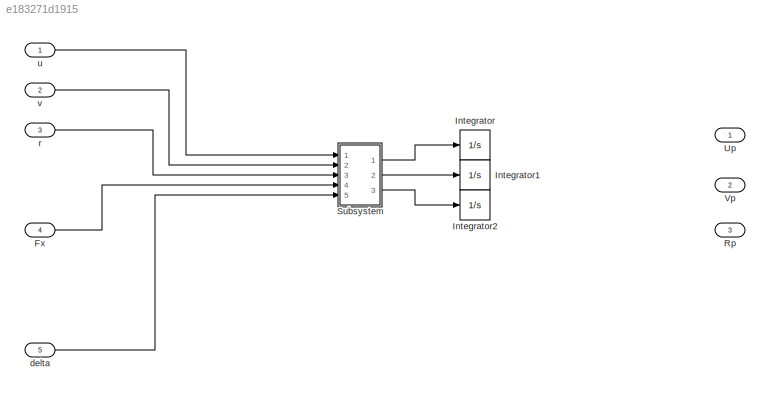
MODEL slx_e183271d1915
KIND model
CONFIG AbsTol = auto
CONFIG EnableMultiTasking = off
CONFIG FixedStep = auto
CONFIG MaxStep = auto
CONFIG MinStep = auto
CONFIG RelTol = 1e-3
CONFIG SampleTimeConstraint = Unconstrained
CONFIG Solver = VariableStepAuto
CONFIG SolverName = VariableStepAuto
CONFIG StartTime = 0.0
CONFIG StopTime = 10.0
BLOCK [Inport] Fx
  IconDisplay = Port number
  Port = 4
BLOCK [Integrator] Integrator
  Ports = [1, 1]
BLOCK [Integrator] Integrator1
  Ports = [1, 1]
BLOCK [Integrator] Integrator2
  Ports = [1, 1]
BLOCK [Outport] Rp 
  IconDisplay = Port number
  Port = 3
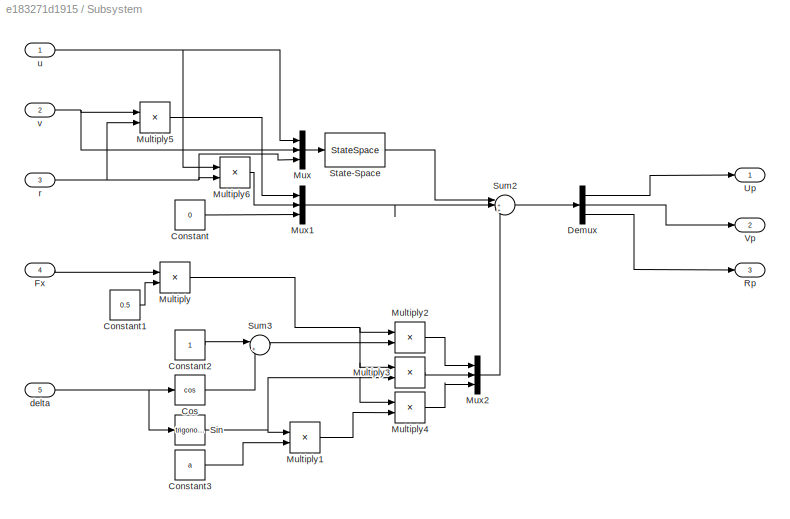
BLOCK [SubSystem] Subsystem
  Ports = [5, 3]
  RequestExecContextInheritance = off
BLOCK [Constant] Subsystem/Constant
  Value = 0
BLOCK [Constant] Subsystem/Constant1
  Value = 0.5
BLOCK [Constant] Subsystem/Constant2
BLOCK [Constant] Subsystem/Constant3
  Value = a
BLOCK [Trigonometry] Subsystem/Cos
  Operator = cos
  Ports = [1, 1]
BLOCK [Demux] Subsystem/Demux
  DisplayOption = bar
  Outputs = 3
  Ports = [1, 3]
BLOCK [Inport] Subsystem/Fx
  IconDisplay = Port number
  Port = 4
BLOCK [Product] Subsystem/Multiply
  InputSameDT = off
  OutDataTypeStr = Inherit: Inherit via internal rule
  Ports = [2, 1]
  RndMeth = Floor
  SaturateOnIntegerOverflow = off
BLOCK [Product] Subsystem/Multiply1
  InputSameDT = off
  OutDataTypeStr = Inherit: Inherit via internal rule
  Ports = [2, 1]
  RndMeth = Floor
  SaturateOnIntegerOverflow = off
BLOCK [Product] Subsystem/Multiply2
  InputSameDT = off
  OutDataTypeStr = Inherit: Inherit via internal rule
  Ports = [2, 1]
  RndMeth = Floor
  SaturateOnIntegerOverflow = off
BLOCK [Product] Subsystem/Multiply3
  InputSameDT = off
  OutDataTypeStr = Inherit: Inherit via internal rule
  Ports = [2, 1]
  RndMeth = Floor
  SaturateOnIntegerOverflow = off
BLOCK [Product] Subsystem/Multiply4
  InputSameDT = off
  OutDataTypeStr = Inherit: Inherit via internal rule
  Ports = [2, 1]
  RndMeth = Floor
  SaturateOnIntegerOverflow = off
BLOCK [Product] Subsystem/Multiply5
  InputSameDT = off
  OutDataTypeStr = Inherit: Inherit via internal rule
  Ports = [2, 1]
  RndMeth = Floor
  SaturateOnIntegerOverflow = off
BLOCK [Product] Subsystem/Multiply6
  InputSameDT = off
  OutDataTypeStr = Inherit: Inherit via internal rule
  Ports = [2, 1]
  RndMeth = Floor
  SaturateOnIntegerOverflow = off
BLOCK [Mux] Subsystem/Mux
  DisplayOption = bar
  Inputs = 3
  Ports = [3, 1]
BLOCK [Mux] Subsystem/Mux1
  DisplayOption = bar
  Inputs = 3
  Ports = [3, 1]
BLOCK [Mux] Subsystem/Mux2
  DisplayOption = bar
  Inputs = 3
  Ports = [3, 1]
BLOCK [Outport] Subsystem/Rp 
  IconDisplay = Port number
  Port = 3
BLOCK [Trigonometry] Subsystem/Sin
  Ports = [1, 1]
BLOCK [StateSpace] Subsystem/State-Space
  A = A
  B = B
  C = B
  D = B
  InitialCondition = 0
  Ports = [1, 1]
BLOCK [Sum] Subsystem/Sum2
  IconShape = round
  InputSameDT = off
  Inputs = |+++
  OutDataTypeStr = Inherit: Inherit via internal rule
  Ports = [3, 1]
  SaturateOnIntegerOverflow = off
BLOCK [Sum] Subsystem/Sum3
  IconShape = round
  InputSameDT = off
  Inputs = |++
  OutDataTypeStr = Inherit: Inherit via internal rule
  Ports = [2, 1]
  SaturateOnIntegerOverflow = off
BLOCK [Outport] Subsystem/Up
  IconDisplay = Port number
BLOCK [Outport] Subsystem/Vp 
  IconDisplay = Port number
  Port = 2
BLOCK [Inport] Subsystem/delta 
  IconDisplay = Port number
  Port = 5
BLOCK [Inport] Subsystem/r
  IconDisplay = Port number
  Port = 3
BLOCK [Inport] Subsystem/u 
  IconDisplay = Port number
BLOCK [Inport] Subsystem/v 
  IconDisplay = Port number
  Port = 2
BLOCK [Outport] Up
  IconDisplay = Port number
BLOCK [Outport] Vp 
  IconDisplay = Port number
  Port = 2
BLOCK [Inport] delta 
  IconDisplay = Port number
  Port = 5
BLOCK [Inport] r
  IconDisplay = Port number
  Port = 3
BLOCK [Inport] u 
  IconDisplay = Port number
BLOCK [Inport] v 
  IconDisplay = Port number
  Port = 2
LINE Fx:1 -> Subsystem:4
LINE Subsystem/Constant1:1 -> Subsystem/Multiply:2
LINE Subsystem/Constant2:1 -> Subsystem/Sum3:1
LINE Subsystem/Constant3:1 -> Subsystem/Multiply1:2
LINE Subsystem/Constant:1 -> Subsystem/Mux1:3
LINE Subsystem/Cos:1 -> Subsystem/Sum3:2
LINE Subsystem/Demux:1 -> Subsystem/Up:1
LINE Subsystem/Demux:2 -> Subsystem/Vp :1
LINE Subsystem/Demux:3 -> Subsystem/Rp :1
LINE Subsystem/Fx:1 -> Subsystem/Multiply:1
LINE Subsystem/Multiply1:1 -> Subsystem/Multiply4:2
LINE Subsystem/Multiply2:1 -> Subsystem/Mux2:1
LINE Subsystem/Multiply3:1 -> Subsystem/Mux2:2
LINE Subsystem/Multiply4:1 -> Subsystem/Mux2:3
LINE Subsystem/Multiply5:1 -> Subsystem/Mux1:1
LINE Subsystem/Multiply6:1 -> Subsystem/Mux1:2
NET Subsystem/Multiply:1 -> Subsystem/Multiply2:1, Subsystem/Multiply3:1, Subsystem/Multiply4:1
LINE Subsystem/Mux1:1 -> Subsystem/Sum2:2
LINE Subsystem/Mux2:1 -> Subsystem/Sum2:3
LINE Subsystem/Mux:1 -> Subsystem/State-Space:1
NET Subsystem/Sin:1 -> Subsystem/Multiply1:1, Subsystem/Multiply3:2
LINE Subsystem/State-Space:1 -> Subsystem/Sum2:1
LINE Subsystem/Sum2:1 -> Subsystem/Demux:1
LINE Subsystem/Sum3:1 -> Subsystem/Multiply2:2
NET Subsystem/delta :1 -> Subsystem/Cos:1, Subsystem/Sin:1
NET Subsystem/r:1 -> Subsystem/Multiply5:2, Subsystem/Multiply6:2, Subsystem/Mux:3
NET Subsystem/u :1 -> Subsystem/Multiply6:1, Subsystem/Mux:1
NET Subsystem/v :1 -> Subsystem/Multiply5:1, Subsystem/Mux:2
LINE Subsystem:1 -> Integrator:1
LINE Subsystem:2 -> Integrator1:1
LINE Subsystem:3 -> Integrator2:1
LINE delta :1 -> Subsystem:5
LINE r:1 -> Subsystem:3
LINE u :1 -> Subsystem:1
LINE v :1 -> Subsystem:2
note: NET lines group one-source signal fan-out (src -> all destinations, sorted); 1:1 wires keep LINE
